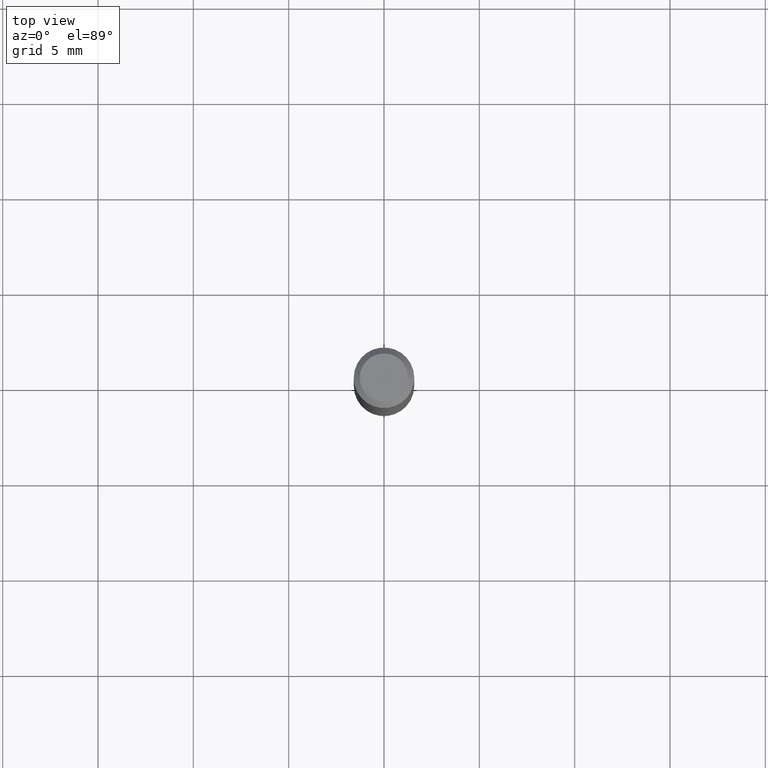
[diagram: clean part render]
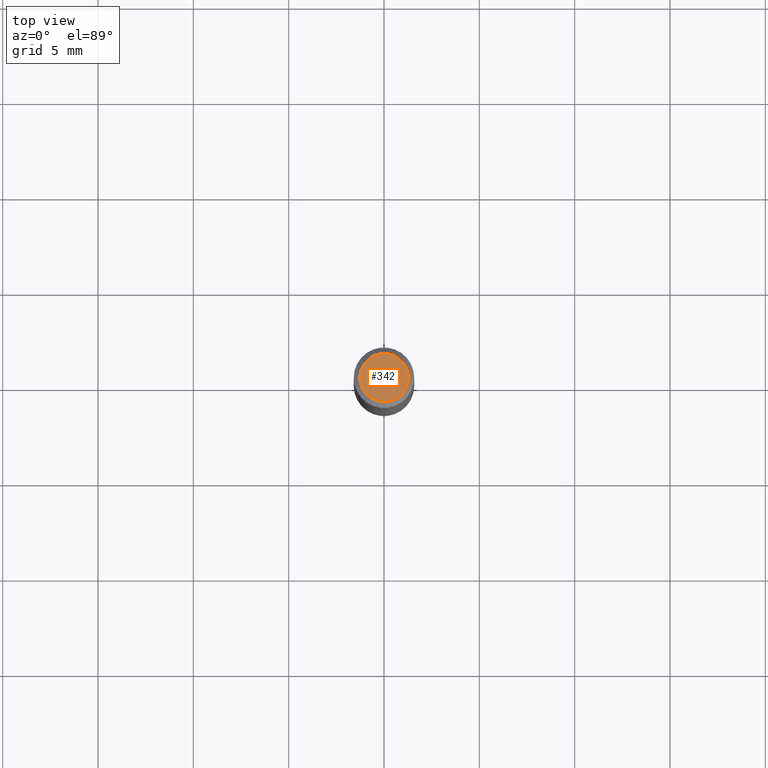
[diagram: same view with one face highlighted and labeled with its STEP entity id]
A machine part, top view. The second image highlights one B-rep face of the part: STEP entity #342.
In plain terms, the highlighted planar face has unit normal (0, -0, -1).
Its self-contained STEP definition (entity closure, byte-faithful):
#4 = DIRECTION ( 'NONE',  ( -2.445468806185136597E-29, 3.491481338843145583E-15, 1.000000000000000000 ) ) ;
#18 = FACE_OUTER_BOUND ( 'NONE', #209, .T. ) ;
#37 = EDGE_CURVE ( 'NONE', #176, #473, #338, .T. ) ;
#38 = AXIS2_PLACEMENT_3D ( 'NONE', #192, #4, #193 ) ;
#92 = ORIENTED_EDGE ( 'NONE', *, *, #396, .T. ) ;
#100 = DIRECTION ( 'NONE',  ( 1.000000000000000000, -6.982962677686265922E-15, 4.875957971899673662E-29 ) ) ;
#102 = ORIENTED_EDGE ( 'NONE', *, *, #37, .T. ) ;
#146 = DIRECTION ( 'NONE',  ( -2.445468806185136597E-29, 3.491481338843145583E-15, 1.000000000000000000 ) ) ;
#176 = VERTEX_POINT ( 'NONE', #239 ) ;
#192 = CARTESIAN_POINT ( 'NONE',  ( 3.893286209682126177E-47, -5.558580879666067980E-33, -1.592040838891559689E-18 ) ) ;
#193 = DIRECTION ( 'NONE',  ( 1.000000000000000000, -6.982962677686265922E-15, 4.875957971899673662E-29 ) ) ;
#208 = CARTESIAN_POINT ( 'NONE',  ( 1.946643104841063088E-47, -2.779290439833033990E-33, -7.960204194457798443E-19 ) ) ;
#209 = EDGE_LOOP ( 'NONE', ( #102, #92 ) ) ;
#221 = CIRCLE ( 'NONE', #352, 0.04999999999999999584 ) ;
#239 = CARTESIAN_POINT ( 'NONE',  ( -0.04999999999999999584, 3.709698922520826725E-16, -1.592040838894077649E-18 ) ) ;
#249 = DIRECTION ( 'NONE',  ( 2.438088387897960049E-29, -3.491481338843145188E-15, -1.000000000000000000 ) ) ;
#286 = CARTESIAN_POINT ( 'NONE',  ( 0.04999999999999999584, -4.077247707424184705E-16, -1.592040838888913461E-18 ) ) ;
#338 = CIRCLE ( 'NONE', #38, 0.04999999999999999584 ) ;
#342 = ADVANCED_FACE ( 'NONE', ( #18 ), #353, .F. ) ;
#352 = AXIS2_PLACEMENT_3D ( 'NONE', #403, #146, #100 ) ;
#353 = PLANE ( 'NONE',  #410 ) ;
#357 = DIRECTION ( 'NONE',  ( -1.000000000000000000, 6.982962677686265922E-15, -4.876176775795935793E-29 ) ) ;
#396 = EDGE_CURVE ( 'NONE', #473, #176, #221, .T. ) ;
#403 = CARTESIAN_POINT ( 'NONE',  ( 3.893286209682126177E-47, -5.558580879666067980E-33, -1.592040838891559689E-18 ) ) ;
#410 = AXIS2_PLACEMENT_3D ( 'NONE', #208, #249, #357 ) ;
#473 = VERTEX_POINT ( 'NONE', #286 ) ;